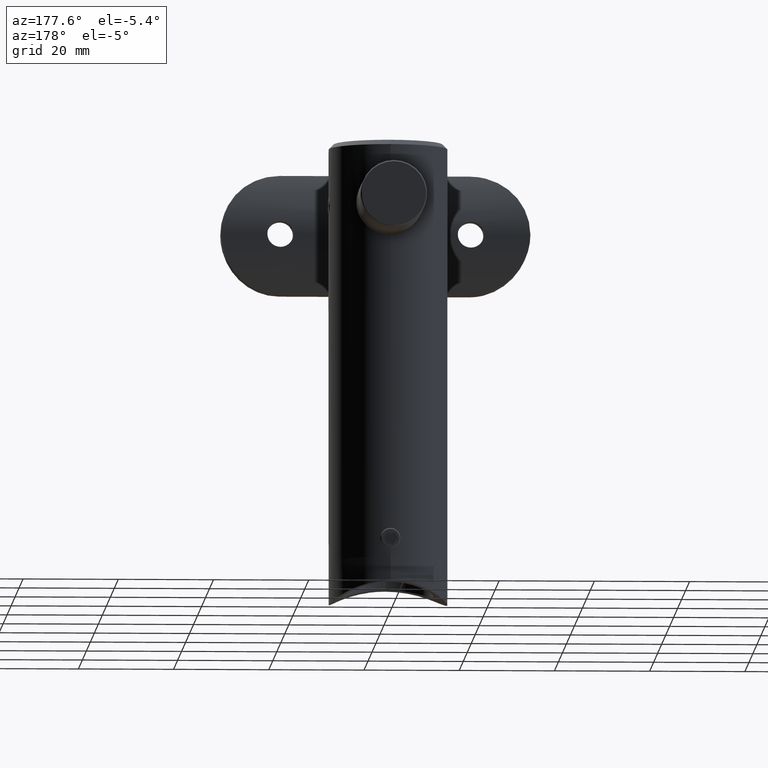
[diagram: clean part render]
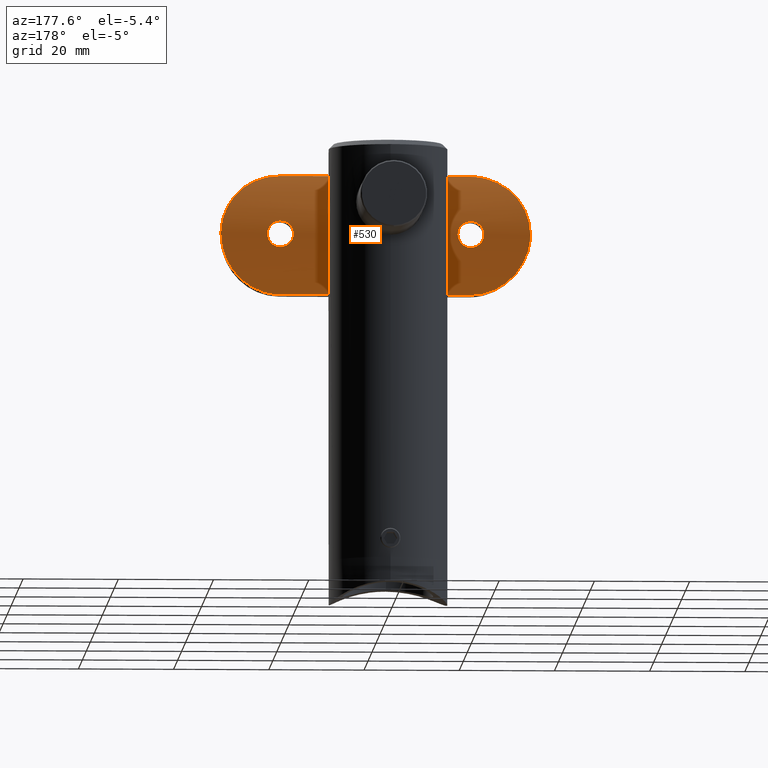
[diagram: same view with one face highlighted and labeled with its STEP entity id]
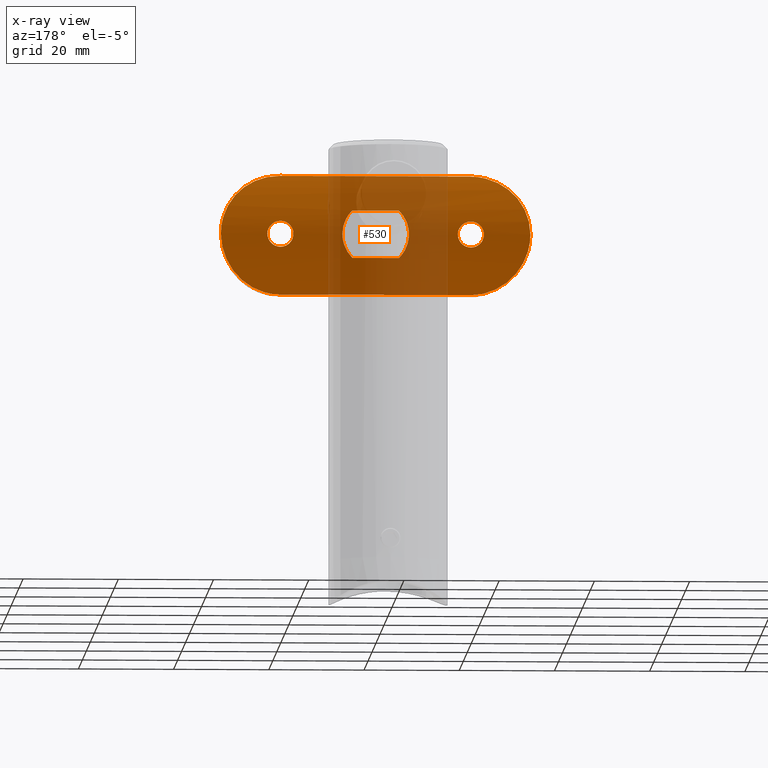
[diagram: x-ray of the same camera — body ghosted, the highlighted face saturated]
A machine part, auxiliary view. The second image highlights one B-rep face of the part: STEP entity #530.
The next image is the same camera in x-ray: the body ghosted, the highlighted face saturated — about 38% of this face is hidden behind the body in this view.
In plain terms, the highlighted cylindrical surface (partial cylindrical patch) has radius 25.2 mm, axis along (1, -0, -0).
Its self-contained STEP definition (entity closure, byte-faithful):
#53 = VERTEX_POINT ( 'NONE', #13456 ) ;
#58 = CARTESIAN_POINT ( 'NONE',  ( 2.877492456091673922, 0.1615283928029649652, -32.17128298990891722 ) ) ;
#369 = CARTESIAN_POINT ( 'NONE',  ( 3.367778438409112056E-16, 1.187979961890814428E-17, -17.25000000000000000 ) ) ;
#429 = CARTESIAN_POINT ( 'NONE',  ( 12.50000000000000355, 3.318729470161013495, 20.00000000000000000 ) ) ;
#440 = CARTESIAN_POINT ( 'NONE',  ( 2.185445985078765752, 0.09474132932688446307, -21.67899418032607528 ) ) ;
#530 = ADVANCED_FACE ( 'NONE', ( #16071, #18037, #19024, #13351 ), #12867, .T. ) ;
#533 = CARTESIAN_POINT ( 'NONE',  ( 4.994997497496878047, 0.5000000000000004441, -4.904079934095693538 ) ) ;
#571 = CARTESIAN_POINT ( 'NONE',  ( 2.386475810722792801, 0.1130527907451534253, -21.37837905385300985 ) ) ;
#662 = CARTESIAN_POINT ( 'NONE',  ( 0.9402805556948555799, 0.01343035068149444136, -6.952064960875580013 ) ) ;
#689 = VECTOR ( 'NONE', #10693, 1000.000000000000000 ) ;
#728 = CARTESIAN_POINT ( 'NONE',  ( 0.4698895265831923296, -7.623296525288704592E-18, -7.000000000000001776 ) ) ;
#775 = CARTESIAN_POINT ( 'NONE',  ( 2.071661256399241591, 0.08497705952024418863, 18.18262409988289008 ) ) ;
#777 = VECTOR ( 'NONE', #12045, 1000.000000000000000 ) ;
#841 = CARTESIAN_POINT ( 'NONE',  ( 1.676804932486638089, 0.05540344988688267192, 17.81296691203435500 ) ) ;
#907 = CARTESIAN_POINT ( 'NONE',  ( 1.816470635807415412, 0.06522320398721243029, 22.07265203258289432 ) ) ;
#1026 = CARTESIAN_POINT ( 'NONE',  ( -4.994997497496878047, 0.5000000000000004441, 32.50000000000000000 ) ) ;
#1032 = CARTESIAN_POINT ( 'NONE',  ( 1.219095633492286668, 0.02895344662255283294, 22.47159784946334327 ) ) ;
#1086 = CARTESIAN_POINT ( 'NONE',  ( -2.501389699445222714, 0.1235345146525173160, -6.541914726237065381 ) ) ;
#1147 = CARTESIAN_POINT ( 'NONE',  ( 0.4606467792952485540, -5.647623811269855736E-05, 7.000203314475389682 ) ) ;
#1153 = CARTESIAN_POINT ( 'NONE',  ( -0.3636032754976207815, -5.176312455442927428E-18, 17.25000000000000355 ) ) ;
#1178 = CARTESIAN_POINT ( 'NONE',  ( -1.681001452974610011, 0.05567932825155111343, -22.18389601222249397 ) ) ;
#1194 = CARTESIAN_POINT ( 'NONE',  ( -12.49999999999999645, 3.318729470161013495, 32.50000000000004974 ) ) ;
#1241 = CARTESIAN_POINT ( 'NONE',  ( -2.188487952104988921, 0.09500982583482231458, -21.67489940466904486 ) ) ;
#1251 = CARTESIAN_POINT ( 'NONE',  ( 11.68647699581961064, 2.872938612537728975, 24.45450101598523318 ) ) ;
#1265 = VERTEX_POINT ( 'NONE', #12763 ) ;
#1278 = CARTESIAN_POINT ( 'NONE',  ( 3.131794892197712343, 0.1945159506885066336, 6.264640589746615085 ) ) ;
#1309 = CARTESIAN_POINT ( 'NONE',  ( -2.731891327557903981, 0.1484927668286139535, -19.63751749119465373 ) ) ;
#1316 = CARTESIAN_POINT ( 'NONE',  ( 0.8408319059978909271, -5.251604272976641764E-17, 32.50000000000000000 ) ) ;
#1349 = CARTESIAN_POINT ( 'NONE',  ( -4.994997497496878047, 0.5000000000000004441, -4.904079934095687321 ) ) ;
#1443 = CARTESIAN_POINT ( 'NONE',  ( -1.667268011024898300, 0.04195479554921916626, -32.41603179174911986 ) ) ;
#1451 = CARTESIAN_POINT ( 'NONE',  ( 9.397641427769128697, 1.816225346274615182, 28.25204418689426689 ) ) ;
#1454 = CARTESIAN_POINT ( 'NONE',  ( -12.41600094213972305, 3.270152093552304962, 21.66693629175976099 ) ) ;
#1656 = CARTESIAN_POINT ( 'NONE',  ( 0.1818445906004798052, -4.764560328305439407E-19, -22.75000000000000000 ) ) ;
#1722 = VERTEX_POINT ( 'NONE', #2859 ) ;
#1754 = CARTESIAN_POINT ( 'NONE',  ( 11.68341459577140107, 2.871341540761539246, -24.46233648995674059 ) ) ;
#1819 = ORIENTED_EDGE ( 'NONE', *, *, #15736, .T. ) ;
#1863 = CARTESIAN_POINT ( 'NONE',  ( -12.49999999999999645, 3.318729470161013495, 20.00000000000000000 ) ) ;
#2006 = CARTESIAN_POINT ( 'NONE',  ( 2.661862787343812098, 0.1409550103587203784, -19.28631872760430355 ) ) ;
#2075 = ORIENTED_EDGE ( 'NONE', *, *, #10162, .F. ) ;
#2238 = B_SPLINE_CURVE_WITH_KNOTS ( 'NONE', 3,
 ( #533, #17877, #7196, #5465, #15103, #10273, #6999, #8563, #2299, #662, #728, #11683 ),
 .UNSPECIFIED., .F., .F.,
 ( 4, 2, 2, 2, 2, 4 ),
 ( -0.005556631019686523489, -0.004167473264764891966, -0.003472894387304076638, -0.002778315509843261311, -0.001389157754921629788, 1.734723475976807094E-18 ),
 .UNSPECIFIED. ) ;
#2299 = CARTESIAN_POINT ( 'NONE',  ( 1.849747642260560765, 0.06385367874897515672, -6.767109309269603301 ) ) ;
#2337 = CARTESIAN_POINT ( 'NONE',  ( 2.661862787343812098, 0.1409550103587203784, 20.71368127239568580 ) ) ;
#2406 = CARTESIAN_POINT ( 'NONE',  ( 2.661818859993607234, 0.1409500894293510831, 19.28586530190980852 ) ) ;
#2493 = CARTESIAN_POINT ( 'NONE',  ( -1.664684350995173645, 0.04192139592814474874, 32.41608617209117682 ) ) ;
#2543 = CARTESIAN_POINT ( 'NONE',  ( 2.186845405397448427, 0.09486715601728981651, 21.67698820101687929 ) ) ;
#2564 = CARTESIAN_POINT ( 'NONE',  ( 9.908890582928830071, 2.028239840774359593, 27.63058222437334166 ) ) ;
#2614 = CARTESIAN_POINT ( 'NONE',  ( 2.073153042044685979, 0.08509194481504152308, 21.81589880862933839 ) ) ;
#2662 = CARTESIAN_POINT ( 'NONE',  ( -1.848043787636057811, 0.06372369354510659667, 6.767591064094362174 ) ) ;
#2665 = CARTESIAN_POINT ( 'NONE',  ( -1.217448732056683580, 0.02888063956006701322, 22.47232603550751762 ) ) ;
#2689 = CARTESIAN_POINT ( 'NONE',  ( -2.070049739579363113, 0.08484369530548910299, -18.18079078823301842 ) ) ;
#2719 = CARTESIAN_POINT ( 'NONE',  ( -2.289067587771870471, 0.1005006583606648518, 6.631371122702273802 ) ) ;
#2747 = CARTESIAN_POINT ( 'NONE',  ( -1.380705439593752137, 0.03740314638222121124, -22.38512476952051955 ) ) ;
#2796 = CARTESIAN_POINT ( 'NONE',  ( -0.8864897003658910313, 0.01505276392571752719, 22.60935115539859197 ) ) ;
#2814 = ORIENTED_EDGE ( 'NONE', *, *, #4365, .F. ) ;
#2825 = CARTESIAN_POINT ( 'NONE',  ( 11.21365936985682232, 2.629676505859719793, 25.58293283478850455 ) ) ;
#2848 = CARTESIAN_POINT ( 'NONE',  ( -4.994997497496878047, 0.5000000000000004441, 4.904079934095687321 ) ) ;
#2852 = CARTESIAN_POINT ( 'NONE',  ( -2.387772925441571825, 0.1131797228511405573, 18.62402471359489908 ) ) ;
#2859 = CARTESIAN_POINT ( 'NONE',  ( 3.367778438409112056E-16, 1.187979961890814428E-17, 22.75000000000000000 ) ) ;
#2878 = CARTESIAN_POINT ( 'NONE',  ( -2.072542795732173371, 0.08505021053594397085, -21.81636770479491361 ) ) ;
#2913 = CARTESIAN_POINT ( 'NONE',  ( -3.141571527728774349, 0.1929047068352865713, -6.272553163709011059 ) ) ;
#3027 = CARTESIAN_POINT ( 'NONE',  ( -12.06660317602190347, 3.076343127531651067, 23.28902056191594028 ) ) ;
#3101 = CARTESIAN_POINT ( 'NONE',  ( 0.000000000000000000, 0.000000000000000000, 32.50000000000000000 ) ) ;
#3195 = CARTESIAN_POINT ( 'NONE',  ( 3.277855041561019256, 0.2108776143917484025, -32.06970119788353202 ) ) ;
#3380 = CARTESIAN_POINT ( 'NONE',  ( -12.49999999999999645, 3.318729470161013495, -20.00000000000000355 ) ) ;
#3444 = CARTESIAN_POINT ( 'NONE',  ( 1.818193974664967127, 0.06535601341085053861, -22.07094331020531541 ) ) ;
#3516 = CARTESIAN_POINT ( 'NONE',  ( 1.219095633492286668, 0.02895344662255283294, -17.52840215053666029 ) ) ;
#3643 = B_SPLINE_CURVE_WITH_KNOTS ( 'NONE', 3,
 ( #7567, #9113, #9249, #7627, #2796, #2665, #16869, #17125, #7426, #15537, #8987, #9047, #20103, #20167, #13813, #12310, #4320, #12175, #4255, #20028, #13756, #10779, #2852, #6043, #4381, #18626, #9182, #15271, #10583, #20225, #1153, #4437 ),
 .UNSPECIFIED., .F., .F.,
 ( 4, 2, 2, 2, 2, 2, 2, 2, 2, 2, 2, 2, 2, 2, 2, 4 ),
 ( 0.008604157104151117716, 0.009141789900862767188, 0.009679422697574418394, 0.01021705549428606787, 0.01075468829099771734, 0.01129232108770936854, 0.01182995388442101801, 0.01236758668113266749, 0.01290521947784431869, 0.01344285227455596816, 0.01398048507126761764, 0.01451811786797926884, 0.01505575066469091831, 0.01559338346140256779, 0.01613101625811421899, 0.01720628185153751447 ),
 .UNSPECIFIED. ) ;
#3656 = CARTESIAN_POINT ( 'NONE',  ( 2.471992188797772716, 0.1214422965093789747, -18.78170196461819685 ) ) ;
#3705 = ORIENTED_EDGE ( 'NONE', *, *, #17704, .T. ) ;
#4001 = CARTESIAN_POINT ( 'NONE',  ( 0.3606231533980620574, 0.001966636658812798057, 17.26785897055959751 ) ) ;
#4102 = CARTESIAN_POINT ( 'NONE',  ( -4.070717388981838880, 0.3277296730789911461, 31.82587335543209761 ) ) ;
#4203 = CARTESIAN_POINT ( 'NONE',  ( 0.1795455977072649978, -1.309195299099928356E-15, 22.75000000000001066 ) ) ;
#4224 = CARTESIAN_POINT ( 'NONE',  ( 12.50000000000000355, 3.318729470161013495, 20.84092147420121677 ) ) ;
#4255 = CARTESIAN_POINT ( 'NONE',  ( -2.732406010615071601, 0.1485492483776507389, 19.64141223355751009 ) ) ;
#4280 = CARTESIAN_POINT ( 'NONE',  ( -2.385862764267737024, 0.1129972152947476410, -18.62071822284677225 ) ) ;
#4281 = EDGE_LOOP ( 'NONE', ( #2075, #10420 ) ) ;
#4306 = VERTEX_POINT ( 'NONE', #3380 ) ;
#4315 = CARTESIAN_POINT ( 'NONE',  ( 2.923378882602776230, 0.1692259389580251516, 6.364519216893696374 ) ) ;
#4320 = CARTESIAN_POINT ( 'NONE',  ( -2.749863044303475501, 0.1504839716144722728, 20.18379582039309739 ) ) ;
#4343 = CARTESIAN_POINT ( 'NONE',  ( -12.17172894015757478, 3.134241449003878799, -22.87552147047213680 ) ) ;
#4365 = EDGE_CURVE ( 'NONE', #15164, #18757, #6685, .T. ) ;
#4379 = CARTESIAN_POINT ( 'NONE',  ( -2.281009278780523175, 0.1024524370745471535, -6.622027795030901665 ) ) ;
#4381 = CARTESIAN_POINT ( 'NONE',  ( -2.072542795732173371, 0.08505021053594397085, 18.18363229520508639 ) ) ;
#4437 = CARTESIAN_POINT ( 'NONE',  ( 0.000000000000000000, 0.000000000000000000, 17.25000000000000000 ) ) ;
#4471 = CARTESIAN_POINT ( 'NONE',  ( 4.083048678825495159, 0.3297619529015493045, 31.82160056614383237 ) ) ;
#4532 = CARTESIAN_POINT ( 'NONE',  ( -10.15187181039420494, 2.133985303426429780, -27.30437927746718074 ) ) ;
#4604 = CARTESIAN_POINT ( 'NONE',  ( 8.562141571826806796, 1.497233673915075114, 29.11593343704043590 ) ) ;
#4606 = CARTESIAN_POINT ( 'NONE',  ( -7.643915563752456066, 1.185045859685579073, 29.89864509263435366 ) ) ;
#4698 = CARTESIAN_POINT ( 'NONE',  ( 10.83018612312571882, 2.440555194631701230, -26.29386951518686644 ) ) ;
#4736 = CARTESIAN_POINT ( 'NONE',  ( -3.291592242805514879, 0.2126942720887865790, -32.06594161125494935 ) ) ;
#4840 = CARTESIAN_POINT ( 'NONE',  ( 5.592058036261040144, 0.6162643484422566376, -31.20930733956446801 ) ) ;
#4906 = CARTESIAN_POINT ( 'NONE',  ( 12.50000000000000888, 3.318729470161013939, -20.84105733039346120 ) ) ;
#4912 = ORIENTED_EDGE ( 'NONE', *, *, #10994, .T. ) ;
#5163 = CARTESIAN_POINT ( 'NONE',  ( 2.385900400082741069, 0.1130020285006530095, -18.62084753042212171 ) ) ;
#5465 = CARTESIAN_POINT ( 'NONE',  ( 3.746260209242295858, 0.2792753570640736926, -5.917626068317372479 ) ) ;
#5512 = CARTESIAN_POINT ( 'NONE',  ( 0.1818445906004798052, -4.764560328305439407E-19, 17.25000000000000355 ) ) ;
#5657 = CARTESIAN_POINT ( 'NONE',  ( -5.592058036261044585, 0.6162643484422571927, 31.20930733956447867 ) ) ;
#5690 = CARTESIAN_POINT ( 'NONE',  ( 4.994997497496878047, 0.5000000000000004441, 4.904079934095681104 ) ) ;
#5829 = CARTESIAN_POINT ( 'NONE',  ( -4.310096744004994207, 0.3683117235646176102, -5.534999873198942488 ) ) ;
#5862 = CARTESIAN_POINT ( 'NONE',  ( -1.217448732056683136, 0.02888063956006700975, -17.52767396449248238 ) ) ;
#5897 = CARTESIAN_POINT ( 'NONE',  ( -1.611077364521717792, 0.05052746572995766433, -6.816003579833039616 ) ) ;
#5928 = CARTESIAN_POINT ( 'NONE',  ( -6.305223603466176385, 0.7914857843385441072, -30.82374023567217947 ) ) ;
#5938 = CARTESIAN_POINT ( 'NONE',  ( 12.17172894015757301, 3.134241449003879243, 22.87552147047213325 ) ) ;
#5977 = VERTEX_POINT ( 'NONE', #1349 ) ;
#6004 = CARTESIAN_POINT ( 'NONE',  ( -2.186191567257209645, 0.09480897740505452032, -18.32210674297805042 ) ) ;
#6043 = CARTESIAN_POINT ( 'NONE',  ( -2.188487952104988921, 0.09500982583481884514, 18.32510059533095870 ) ) ;
#6066 = CARTESIAN_POINT ( 'NONE',  ( -11.68647699581960708, 2.872938612537727199, -24.45450101598523318 ) ) ;
#6075 = CARTESIAN_POINT ( 'NONE',  ( 1.667268011024896079, 0.04195479554921899279, 32.41603179174911276 ) ) ;
#6079 = CARTESIAN_POINT ( 'NONE',  ( -10.15326211524584465, 2.134602035805861053, 27.30241053714793509 ) ) ;
#6088 = B_SPLINE_CURVE_WITH_KNOTS ( 'NONE', 3,
 ( #8716, #15061, #7623, #5897, #8910, #4379, #1086, #2913, #8983, #5829, #10776, #18557 ),
 .UNSPECIFIED., .F., .F.,
 ( 4, 2, 2, 2, 2, 4 ),
 ( 1.734723475976807094E-18, 0.001388628629513971374, 0.002082942944270955651, 0.002777257259027938845, 0.004165885888541906966, 0.005554514518055875087 ),
 .UNSPECIFIED. ) ;
#6106 = CARTESIAN_POINT ( 'NONE',  ( -3.745609676626447282, 0.2791767651045761189, 5.918042161965038517 ) ) ;
#6315 = CARTESIAN_POINT ( 'NONE',  ( 8.266035766619461711, 1.392015620549697186, -29.38537545976075194 ) ) ;
#6483 = CARTESIAN_POINT ( 'NONE',  ( -0.8408319059978930365, 0.000000000000000000, -32.50000000000000711 ) ) ;
#6595 = CARTESIAN_POINT ( 'NONE',  ( 4.994997497496878047, 0.5000000000000004441, 32.50000000000000000 ) ) ;
#6685 = B_SPLINE_CURVE_WITH_KNOTS ( 'NONE', 3,
 ( #8141, #1656, #12822, #14398, #17440, #14471, #19153, #12889, #3444, #14540, #440, #571, #14806, #16343, #14743, #19367, #8478, #11586, #11446, #2006, #14608, #3656, #5163, #8277, #9769, #16127, #9837, #19221, #3516, #17711, #6845, #16202, #6774, #369 ),
 .UNSPECIFIED., .F., .F.,
 ( 4, 2, 2, 2, 2, 2, 2, 2, 2, 2, 2, 2, 2, 2, 2, 2, 4 ),
 ( 0.000000000000000000, 0.0005377598190094450741, 0.001075519638018890148, 0.001613279457028335114, 0.002151039276037779863, 0.002688799095047224395, 0.003226558914056669794, 0.003764318733066114326, 0.004302078552075559725, 0.004839838371085004691, 0.005377598190094449657, 0.005915358009103895490, 0.006453117828113340455, 0.006990877647122785421, 0.007528637466132229519, 0.008066397285141675352, 0.008604157104151117716 ),
 .UNSPECIFIED. ) ;
#6712 = VERTEX_POINT ( 'NONE', #6781 ) ;
#6737 = CARTESIAN_POINT ( 'NONE',  ( 4.994997497496878047, 0.5000000000000004441, -4.904079934095693538 ) ) ;
#6774 = CARTESIAN_POINT ( 'NONE',  ( 0.1795455977072649978, -1.309195299099928356E-15, -17.25000000000000711 ) ) ;
#6781 = CARTESIAN_POINT ( 'NONE',  ( 0.000000000000000000, 0.000000000000000000, -7.000000000000000000 ) ) ;
#6845 = CARTESIAN_POINT ( 'NONE',  ( 0.7146027208720071577, 0.009516633005673827764, -17.33838830395485076 ) ) ;
#6999 = CARTESIAN_POINT ( 'NONE',  ( 2.931071408694909675, 0.1701189516846315086, -6.361014005149244532 ) ) ;
#7172 = CARTESIAN_POINT ( 'NONE',  ( 2.609876908287981578, 0.1354165326377078371, 20.88517682305715084 ) ) ;
#7175 = LINE ( 'NONE', #1026, #777 ) ;
#7196 = CARTESIAN_POINT ( 'NONE',  ( 4.316102207502560795, 0.3693900422898226954, -5.530128126320168924 ) ) ;
#7197 = CARTESIAN_POINT ( 'NONE',  ( -2.877492456091671258, 0.1615283928029647431, 32.17128298990891722 ) ) ;
#7208 = ORIENTED_EDGE ( 'NONE', *, *, #12911, .T. ) ;
#7242 = CARTESIAN_POINT ( 'NONE',  ( 0.8870457649144880552, 0.01506562019405351636, 17.39075877949505156 ) ) ;
#7266 = CARTESIAN_POINT ( 'NONE',  ( -7.316861939614358157, 1.083062932609342166, 30.14291416132807910 ) ) ;
#7426 = CARTESIAN_POINT ( 'NONE',  ( -1.816389252517511821, 0.06522504145087958116, 22.07252458703131381 ) ) ;
#7451 = CARTESIAN_POINT ( 'NONE',  ( -0.8864897003658910313, 0.01505276392571752719, -17.39064884460141869 ) ) ;
#7525 = CARTESIAN_POINT ( 'NONE',  ( -0.1795031878923732671, -1.317162702760038330E-15, -17.25000000000000355 ) ) ;
#7545 = B_SPLINE_CURVE_WITH_KNOTS ( 'NONE', 3,
 ( #17084, #7525, #15435, #18587, #7451, #5862, #20190, #18650, #20128, #2689, #6004, #4280, #16895, #17157, #10743, #1309, #20058, #15296, #10804, #12334, #20317, #17020, #7591, #1241, #2878, #12266, #1178, #2747, #13908, #7719, #9206, #7652 ),
 .UNSPECIFIED., .F., .F.,
 ( 4, 2, 2, 2, 2, 2, 2, 2, 2, 2, 2, 2, 2, 2, 2, 4 ),
 ( 0.008604157104151117716, 0.009141789900862767188, 0.009679422697574418394, 0.01021705549428606787, 0.01075468829099771734, 0.01129232108770936854, 0.01182995388442101801, 0.01236758668113266749, 0.01290521947784431869, 0.01344285227455596816, 0.01398048507126761764, 0.01451811786797926884, 0.01505575066469091831, 0.01559338346140256779, 0.01613101625811421899, 0.01720628185153751447 ),
 .UNSPECIFIED. ) ;
#7567 = CARTESIAN_POINT ( 'NONE',  ( 3.367778438409112056E-16, 1.187979961890814428E-17, 22.75000000000000000 ) ) ;
#7591 = CARTESIAN_POINT ( 'NONE',  ( -2.387772925441571825, 0.1131797228511440268, -21.37597528640510447 ) ) ;
#7597 = CARTESIAN_POINT ( 'NONE',  ( 10.83002449294436254, 2.440458914311941729, 26.29431497601598267 ) ) ;
#7623 = CARTESIAN_POINT ( 'NONE',  ( -0.9310396230433164444, 0.01311211510573928075, -6.953205413290148407 ) ) ;
#7627 = CARTESIAN_POINT ( 'NONE',  ( -0.7129347024110690434, 0.009461439531602326702, 22.66213446081863125 ) ) ;
#7652 = CARTESIAN_POINT ( 'NONE',  ( 0.000000000000000000, 0.000000000000000000, -22.75000000000000000 ) ) ;
#7664 = CARTESIAN_POINT ( 'NONE',  ( -11.21245238722107018, 2.629098992545241487, 25.58474759764793660 ) ) ;
#7690 = CARTESIAN_POINT ( 'NONE',  ( 4.669051333004633264, 0.4340850090705480890, 5.236068869397914938 ) ) ;
#7716 = CARTESIAN_POINT ( 'NONE',  ( 3.367778438409112056E-16, 1.187979961890814428E-17, -17.25000000000000000 ) ) ;
#7719 = CARTESIAN_POINT ( 'NONE',  ( -0.7248454631982099716, 0.008252449000111697353, -22.67681650122943537 ) ) ;
#7728 = CARTESIAN_POINT ( 'NONE',  ( 3.291592242805514879, 0.2126942720887864124, 32.06594161125493514 ) ) ;
#7772 = EDGE_CURVE ( 'NONE', #1722, #1265, #3643, .T. ) ;
#7823 = CARTESIAN_POINT ( 'NONE',  ( 11.21245238722107018, 2.629098992545241931, -25.58474759764793660 ) ) ;
#7863 = CARTESIAN_POINT ( 'NONE',  ( 8.265288067340183176, 1.391754679466066458, 29.38603808824741037 ) ) ;
#7960 = CARTESIAN_POINT ( 'NONE',  ( 12.16969663537521029, 3.133117325917486262, -22.88442763853376150 ) ) ;
#8099 = CARTESIAN_POINT ( 'NONE',  ( 0.000000000000000000, 0.000000000000000000, -32.50000000000000000 ) ) ;
#8141 = CARTESIAN_POINT ( 'NONE',  ( 0.000000000000000000, 0.000000000000000000, -22.75000000000000000 ) ) ;
#8277 = CARTESIAN_POINT ( 'NONE',  ( 2.186845405397448427, 0.09486715601728981651, -18.32301179898312782 ) ) ;
#8359 = EDGE_CURVE ( 'NONE', #12168, #4306, #8556, .T. ) ;
#8478 = CARTESIAN_POINT ( 'NONE',  ( 2.749934349876254736, 0.1504917997237275318, -20.18051630387617124 ) ) ;
#8556 = LINE ( 'NONE', #1194, #689 ) ;
#8563 = CARTESIAN_POINT ( 'NONE',  ( 2.290527553827960805, 0.1006377947985062915, -6.630852029072078047 ) ) ;
#8665 = CARTESIAN_POINT ( 'NONE',  ( 1.818193974664967127, 0.06535601341085053861, 17.92905668979468103 ) ) ;
#8716 = CARTESIAN_POINT ( 'NONE',  ( 0.000000000000000000, 0.000000000000000000, -7.000000000000000000 ) ) ;
#8799 = CARTESIAN_POINT ( 'NONE',  ( 2.732461809628500049, 0.1485546420409056823, 19.64094503296044181 ) ) ;
#8819 = CARTESIAN_POINT ( 'NONE',  ( 10.15187181039420672, 2.133985303426429780, 27.30437927746718074 ) ) ;
#8857 = CARTESIAN_POINT ( 'NONE',  ( 0.000000000000000000, 0.000000000000000000, 17.25000000000000000 ) ) ;
#8910 = CARTESIAN_POINT ( 'NONE',  ( -1.835749376210721762, 0.06596090496137294035, -6.759014697112781356 ) ) ;
#8913 = DIRECTION ( 'NONE',  ( -1.000000000000000000, 0.000000000000000000, 0.000000000000000000 ) ) ;
#8983 = CARTESIAN_POINT ( 'NONE',  ( -3.545792875619932172, 0.2477049255195007404, -6.053140542082076081 ) ) ;
#8987 = CARTESIAN_POINT ( 'NONE',  ( -2.186191567257209201, 0.09480897740505701832, 21.67789325702194958 ) ) ;
#9012 = CARTESIAN_POINT ( 'NONE',  ( -8.265288067340179623, 1.391754679466061351, -29.38603808824742103 ) ) ;
#9024 = CARTESIAN_POINT ( 'NONE',  ( -11.68341459577139929, 2.871341540761538358, 24.46233648995672638 ) ) ;
#9047 = CARTESIAN_POINT ( 'NONE',  ( -2.385862764267737912, 0.1129972152947501668, 21.37928177715322420 ) ) ;
#9071 = CARTESIAN_POINT ( 'NONE',  ( -4.083048678825496047, 0.3297619529015496931, -31.82160056614383947 ) ) ;
#9109 = CARTESIAN_POINT ( 'NONE',  ( -0.4673612864847879744, 0.003256157991245582552, 6.988305028286099230 ) ) ;
#9113 = CARTESIAN_POINT ( 'NONE',  ( -0.1795031878923732671, -1.317162702760038330E-15, 22.75000000000000000 ) ) ;
#9173 = CARTESIAN_POINT ( 'NONE',  ( 0.000000000000000000, 0.000000000000000000, 32.50000000000000000 ) ) ;
#9176 = CARTESIAN_POINT ( 'NONE',  ( 4.994997497496878047, 0.5000000000000004441, 4.904079934095681104 ) ) ;
#9182 = CARTESIAN_POINT ( 'NONE',  ( -1.681001452974610233, 0.05567932825155114118, 17.81610398777750959 ) ) ;
#9206 = CARTESIAN_POINT ( 'NONE',  ( -0.3636032754976207815, -5.176312455442927428E-18, -22.75000000000000000 ) ) ;
#9249 = CARTESIAN_POINT ( 'NONE',  ( -0.3580001740282881539, 0.001917836237160809674, 22.73259430812108306 ) ) ;
#9276 = CARTESIAN_POINT ( 'NONE',  ( -9.397641427769126921, 1.816225346274614516, -28.25204418689426333 ) ) ;
#9491 = CARTESIAN_POINT ( 'NONE',  ( 0.000000000000000000, 0.000000000000000000, -32.50000000000000000 ) ) ;
#9526 = CARTESIAN_POINT ( 'NONE',  ( 7.316861939614359933, 1.083062932609342388, -30.14291416132809687 ) ) ;
#9595 = ORIENTED_EDGE ( 'NONE', *, *, #17684, .T. ) ;
#9660 = CARTESIAN_POINT ( 'NONE',  ( 4.460191993434857949, 0.3948698794312856530, -31.68435314470301023 ) ) ;
#9726 = EDGE_LOOP ( 'NONE', ( #2814, #19783 ) ) ;
#9733 = VECTOR ( 'NONE', #18217, 1000.000000000000000 ) ;
#9769 = CARTESIAN_POINT ( 'NONE',  ( 2.073153042044685979, 0.08509194481504152308, -18.18410119137066872 ) ) ;
#9837 = CARTESIAN_POINT ( 'NONE',  ( 1.677668902466895817, 0.05546439489903178671, -17.81367847826243889 ) ) ;
#9914 = ORIENTED_EDGE ( 'NONE', *, *, #8359, .T. ) ;
#9933 = ORIENTED_EDGE ( 'NONE', *, *, #15471, .T. ) ;
#9973 = EDGE_LOOP ( 'NONE', ( #20340, #4912, #20137, #1819, #15130, #9914 ) ) ;
#10162 = EDGE_CURVE ( 'NONE', #1265, #1722, #10514, .T. ) ;
#10273 = CARTESIAN_POINT ( 'NONE',  ( 3.142232499645792654, 0.1958283380120629802, -6.259404109617910272 ) ) ;
#10276 = CARTESIAN_POINT ( 'NONE',  ( 0.000000000000000000, 0.000000000000000000, 32.50000000000000000 ) ) ;
#10301 = DIRECTION ( 'NONE',  ( 0.000000000000000000, 0.000000000000000000, -1.000000000000000000 ) ) ;
#10420 = ORIENTED_EDGE ( 'NONE', *, *, #7772, .F. ) ;
#10463 = CARTESIAN_POINT ( 'NONE',  ( 1.677668902466895817, 0.05546439489903178671, 22.18632152173756111 ) ) ;
#10514 = B_SPLINE_CURVE_WITH_KNOTS ( 'NONE', 3,
 ( #8857, #5512, #4001, #16615, #7242, #19780, #15081, #841, #8665, #775, #16544, #11851, #19643, #19711, #2406, #8799, #13430, #15012, #11792, #2337, #7172, #11992, #18178, #2543, #2614, #907, #10463, #13565, #1032, #11923, #16748, #13638, #4203, #16815 ),
 .UNSPECIFIED., .F., .F.,
 ( 4, 2, 2, 2, 2, 2, 2, 2, 2, 2, 2, 2, 2, 2, 2, 2, 4 ),
 ( 0.000000000000000000, 0.0005377598190094450741, 0.001075519638018890148, 0.001613279457028335114, 0.002151039276037779863, 0.002688799095047224395, 0.003226558914056669794, 0.003764318733066114326, 0.004302078552075559725, 0.004839838371085004691, 0.005377598190094449657, 0.005915358009103895490, 0.006453117828113340455, 0.006990877647122785421, 0.007528637466132229519, 0.008066397285141675352, 0.008604157104151117716 ),
 .UNSPECIFIED. ) ;
#10578 = CARTESIAN_POINT ( 'NONE',  ( -1.165555591662773116, 0.02593808576752156328, 6.906183376199995116 ) ) ;
#10583 = CARTESIAN_POINT ( 'NONE',  ( -1.220874907014684041, 0.02904747797317014726, 17.52936721807646592 ) ) ;
#10684 = CARTESIAN_POINT ( 'NONE',  ( 11.82730682096132568, 2.947497412072435097, 24.06646263368968519 ) ) ;
#10693 = DIRECTION ( 'NONE',  ( 0.000000000000000000, 0.000000000000000000, -1.000000000000000000 ) ) ;
#10713 = CARTESIAN_POINT ( 'NONE',  ( -3.548809991974042788, 0.2502861401745519188, 6.038192309906697197 ) ) ;
#10743 = CARTESIAN_POINT ( 'NONE',  ( -2.661730875569997323, 0.1409410865998054208, -19.28598841689137799 ) ) ;
#10755 = CARTESIAN_POINT ( 'NONE',  ( -9.129107160068514304, 1.709771713892832778, 28.54809784016516616 ) ) ;
#10776 = CARTESIAN_POINT ( 'NONE',  ( -4.669349089494447824, 0.4341452233588673493, -5.235765592750420083 ) ) ;
#10779 = CARTESIAN_POINT ( 'NONE',  ( -2.472126326106448335, 0.1214555880474237487, 18.78197714892290193 ) ) ;
#10802 = VERTEX_POINT ( 'NONE', #13335 ) ;
#10804 = CARTESIAN_POINT ( 'NONE',  ( -2.732406010615071601, 0.1485492483776507389, -20.35858776644249346 ) ) ;
#10855 = EDGE_CURVE ( 'NONE', #18863, #16578, #15659, .T. ) ;
#10894 = VERTEX_POINT ( 'NONE', #9173 ) ;
#10956 = CARTESIAN_POINT ( 'NONE',  ( 4.468211620779538151, 0.3963447934949464457, 31.68121519372564521 ) ) ;
#10994 = EDGE_CURVE ( 'NONE', #10802, #16578, #13409, .T. ) ;
#11050 = CARTESIAN_POINT ( 'NONE',  ( 9.910013130227612876, 2.028718244006083804, -27.62913782769574667 ) ) ;
#11122 = CARTESIAN_POINT ( 'NONE',  ( 0.8406273536774238053, -0.000000000000000000, -32.49999999999999289 ) ) ;
#11197 = CARTESIAN_POINT ( 'NONE',  ( 11.82318603278413960, 2.945306615177193610, -24.07833795785315445 ) ) ;
#11431 = ORIENTED_EDGE ( 'NONE', *, *, #16035, .T. ) ;
#11446 = CARTESIAN_POINT ( 'NONE',  ( 2.732147407359613034, 0.1485206058410668273, -19.63913298616770220 ) ) ;
#11586 = CARTESIAN_POINT ( 'NONE',  ( 2.750065284371435048, 0.1505061740554802241, -19.82148950650028851 ) ) ;
#11683 = CARTESIAN_POINT ( 'NONE',  ( 0.000000000000000000, 0.000000000000000000, -7.000000000000000000 ) ) ;
#11792 = CARTESIAN_POINT ( 'NONE',  ( 2.732147407359613034, 0.1485206058410668273, 20.36086701383229425 ) ) ;
#11851 = CARTESIAN_POINT ( 'NONE',  ( 2.386475810722792801, 0.1130527907451534253, 18.62162094614699370 ) ) ;
#11908 = EDGE_CURVE ( 'NONE', #18757, #15164, #7545, .T. ) ;
#11915 = EDGE_CURVE ( 'NONE', #4306, #10802, #13736, .T. ) ;
#11923 = CARTESIAN_POINT ( 'NONE',  ( 0.8860473344149225605, 0.01503029826974694276, 22.60958046709581026 ) ) ;
#11992 = CARTESIAN_POINT ( 'NONE',  ( 2.471992188797772716, 0.1214422965093789747, 21.21829803538181380 ) ) ;
#12045 = DIRECTION ( 'NONE',  ( -0.000000000000000000, -0.000000000000000000, 1.000000000000000000 ) ) ;
#12129 = CARTESIAN_POINT ( 'NONE',  ( -11.21365936985681877, 2.629676505859717572, -25.58293283478850810 ) ) ;
#12168 = VERTEX_POINT ( 'NONE', #1863 ) ;
#12175 = CARTESIAN_POINT ( 'NONE',  ( -2.750135411493285886, 0.1505138727913203633, 19.82032561543001492 ) ) ;
#12206 = CARTESIAN_POINT ( 'NONE',  ( -7.642973678624863432, 1.184744735341877853, -29.89937630247455047 ) ) ;
#12220 = CARTESIAN_POINT ( 'NONE',  ( -10.83018612312571882, 2.440555194631701674, 26.29386951518686999 ) ) ;
#12266 = CARTESIAN_POINT ( 'NONE',  ( -1.819241778286837530, 0.06543225118884783698, -22.07002044224181958 ) ) ;
#12277 = CARTESIAN_POINT ( 'NONE',  ( -8.562866471435935267, 1.497495063479012734, 29.11525600394244861 ) ) ;
#12307 = CARTESIAN_POINT ( 'NONE',  ( 3.539860134001162617, 0.2490128047230068808, 6.043446963216088541 ) ) ;
#12310 = CARTESIAN_POINT ( 'NONE',  ( -2.731891327557903981, 0.1484927668286139535, 20.36248250880534272 ) ) ;
#12334 = CARTESIAN_POINT ( 'NONE',  ( -2.662740999674293896, 0.1410487502677224281, -20.71023810214682825 ) ) ;
#12372 = CARTESIAN_POINT ( 'NONE',  ( 0.9221644624557880920, 0.01267861320223575769, 6.954787537755473537 ) ) ;
#12402 = CARTESIAN_POINT ( 'NONE',  ( -12.07039748615804342, 3.078414103210619146, -23.27518083691608908 ) ) ;
#12559 = VERTEX_POINT ( 'NONE', #5690 ) ;
#12568 = CARTESIAN_POINT ( 'NONE',  ( 12.41600094213972305, 3.270152093552303629, -21.66693629175976099 ) ) ;
#12611 = CARTESIAN_POINT ( 'NONE',  ( 7.315607594578458439, 1.082687997029814886, 30.14380031678955518 ) ) ;
#12637 = CARTESIAN_POINT ( 'NONE',  ( 1.664684350995175421, 0.04192139592814493609, -32.41608617209116971 ) ) ;
#12763 = CARTESIAN_POINT ( 'NONE',  ( 0.000000000000000000, 0.000000000000000000, 17.25000000000000000 ) ) ;
#12822 = CARTESIAN_POINT ( 'NONE',  ( 0.3606231533980620574, 0.001966636658812798057, -22.73214102944040249 ) ) ;
#12867 = CYLINDRICAL_SURFACE ( 'NONE', #18142, 25.19999999999999929 ) ;
#12889 = CARTESIAN_POINT ( 'NONE',  ( 1.676804932486638089, 0.05540344988688267192, -22.18703308796564144 ) ) ;
#12911 = EDGE_CURVE ( 'NONE', #12559, #18967, #16117, .T. ) ;
#12934 = EDGE_LOOP ( 'NONE', ( #11431, #3705, #7208, #9933, #9595 ) ) ;
#13154 = VECTOR ( 'NONE', #18972, 1000.000000000000000 ) ;
#13320 = B_SPLINE_CURVE_WITH_KNOTS ( 'NONE', 3,
 ( #13658, #4224, #15442, #5938, #18530, #10684, #1251, #2825, #7597, #8819, #2564, #1451, #17163, #4604, #7863, #17292, #12611, #13916, #20398, #10956, #4471, #7728, #14197, #6075, #1316, #3101 ),
 .UNSPECIFIED., .F., .F.,
 ( 4, 2, 2, 2, 2, 2, 2, 2, 2, 2, 2, 2, 4 ),
 ( 0.000000000000000000, 0.002482949619020690529, 0.003724424428531040131, 0.004965899238041389732, 0.007448848857062097609, 0.008690323666572448078, 0.009931798476082796812, 0.01117327328559314728, 0.01241474809510349428, 0.01489769771412418828, 0.01613917252363453528, 0.01738064733314488228, 0.01986359695216557281 ),
 .UNSPECIFIED. ) ;
#13335 = CARTESIAN_POINT ( 'NONE',  ( 0.000000000000000000, 0.000000000000000000, -32.50000000000000000 ) ) ;
#13351 = FACE_BOUND ( 'NONE', #4281, .T. ) ;
#13409 = B_SPLINE_CURVE_WITH_KNOTS ( 'NONE', 3,
 ( #8099, #11122, #12637, #58, #3195, #15876, #9660, #4840, #17469, #9526, #17248, #6315, #14220, #19034, #18815, #11050, #17320, #4698, #7823, #1754, #11197, #20422, #7960, #12568, #4906, #15799 ),
 .UNSPECIFIED., .F., .F.,
 ( 4, 2, 2, 2, 2, 2, 2, 2, 2, 2, 2, 2, 4 ),
 ( 0.000000000000000000, 0.002483427128890330991, 0.003725140693335499738, 0.004966854257780666318, 0.007450281386671002946, 0.008691994951116169960, 0.009933708515561337840, 0.01117542208000650572, 0.01241713564445167187, 0.01490056277334199895, 0.01614227633778715643, 0.01738398990223231563, 0.01986741703112264446 ),
 .UNSPECIFIED. ) ;
#13430 = CARTESIAN_POINT ( 'NONE',  ( 2.749934349876254736, 0.1504917997237275318, 19.81948369612382876 ) ) ;
#13456 = CARTESIAN_POINT ( 'NONE',  ( -4.994997497496878047, 0.5000000000000004441, 4.904079934095687321 ) ) ;
#13565 = CARTESIAN_POINT ( 'NONE',  ( 1.379931598055810005, 0.03736833065384769642, 22.38544828646618612 ) ) ;
#13638 = CARTESIAN_POINT ( 'NONE',  ( 0.3619265619250440214, 0.001981854215824124538, 22.73200348333876875 ) ) ;
#13658 = CARTESIAN_POINT ( 'NONE',  ( 12.50000000000000355, 3.318729470161013495, 20.00000000000000000 ) ) ;
#13718 = CARTESIAN_POINT ( 'NONE',  ( -9.128318860952347791, 1.709465851586688290, -28.54893592778295286 ) ) ;
#13736 = B_SPLINE_CURVE_WITH_KNOTS ( 'NONE', 3,
 ( #13776, #18709, #15497, #4343, #12402, #13843, #6066, #12129, #13970, #4532, #15564, #9276, #13718, #18456, #9012, #12206, #15369, #5928, #16955, #18521, #9071, #4736, #15698, #1443, #6483, #9491 ),
 .UNSPECIFIED., .F., .F.,
 ( 4, 2, 2, 2, 2, 2, 2, 2, 2, 2, 2, 2, 4 ),
 ( 0.000000000000000000, 0.002482949619020707443, 0.003724424428531055310, 0.004965899238041403610, 0.007448848857062097609, 0.008690323666572449812, 0.009931798476082802016, 0.01117327328559315248, 0.01241474809510350295, 0.01489769771412419522, 0.01613917252363454222, 0.01738064733314488575, 0.01986359695216557628 ),
 .UNSPECIFIED. ) ;
#13754 = CARTESIAN_POINT ( 'NONE',  ( 1.840663757758763674, 0.06310474882528753493, 6.769890244458069972 ) ) ;
#13756 = CARTESIAN_POINT ( 'NONE',  ( -2.609961094115734959, 0.1354253680277159866, 19.11507552572169999 ) ) ;
#13776 = CARTESIAN_POINT ( 'NONE',  ( -12.49999999999999645, 3.318729470161013495, -20.00000000000000355 ) ) ;
#13813 = CARTESIAN_POINT ( 'NONE',  ( -2.661730875569997323, 0.1409410865998053930, 20.71401158310862911 ) ) ;
#13843 = CARTESIAN_POINT ( 'NONE',  ( -11.82730682096132746, 2.947497412072435541, -24.06646263368969585 ) ) ;
#13854 = CARTESIAN_POINT ( 'NONE',  ( -12.16969663537520674, 3.133117325917486706, 22.88442763853375794 ) ) ;
#13880 = CARTESIAN_POINT ( 'NONE',  ( 3.739686144282476477, 0.2782750895421263748, 5.921855256084517904 ) ) ;
#13908 = CARTESIAN_POINT ( 'NONE',  ( -1.220874907014684041, 0.02904747797317014379, -22.47063278192352698 ) ) ;
#13916 = CARTESIAN_POINT ( 'NONE',  ( 6.305223603466182603, 0.7914857843385423308, 30.82374023567219368 ) ) ;
#13920 = CARTESIAN_POINT ( 'NONE',  ( -9.910013130227612876, 2.028718244006080695, 27.62913782769574311 ) ) ;
#13970 = CARTESIAN_POINT ( 'NONE',  ( -10.83002449294436431, 2.440458914311942173, -26.29431497601598977 ) ) ;
#13991 = B_SPLINE_CURVE_WITH_KNOTS ( 'NONE', 3,
 ( #2848, #17057, #16929, #6106, #10713, #16864, #18424, #2719, #2662, #10578, #20023, #9109, #17121, #1147, #12372, #13754, #18623, #4315, #1278, #12307, #13880, #15474, #7690, #9176 ),
 .UNSPECIFIED., .F., .F.,
 ( 4, 2, 2, 2, 2, 2, 2, 2, 2, 2, 2, 4 ),
 ( 0.000000000000000000, 0.001390029914704787048, 0.002085044872057180681, 0.002780059829409574097, 0.004170089744114359627, 0.004865104701466752175, 0.005560119658819145591, 0.006950149573523930688, 0.008340179488228717519, 0.009035194445581110068, 0.009730209402933504351, 0.01112023931763829118 ),
 .UNSPECIFIED. ) ;
#14197 = CARTESIAN_POINT ( 'NONE',  ( 2.886391478844329672, 0.1625181075792131447, 32.16925023365995884 ) ) ;
#14220 = CARTESIAN_POINT ( 'NONE',  ( 8.562866471435933491, 1.497495063479012956, -29.11525600394245572 ) ) ;
#14398 = CARTESIAN_POINT ( 'NONE',  ( 0.7123072138261845598, 0.009455089816863529797, -22.66219122090235771 ) ) ;
#14471 = CARTESIAN_POINT ( 'NONE',  ( 1.220040459320808957, 0.02899940046473774291, -22.47113156538764045 ) ) ;
#14540 = CARTESIAN_POINT ( 'NONE',  ( 2.071661256399241591, 0.08497705952024418863, -21.81737590011711703 ) ) ;
#14608 = CARTESIAN_POINT ( 'NONE',  ( 2.609876908287981578, 0.1354165326377078371, -19.11482317694285626 ) ) ;
#14743 = CARTESIAN_POINT ( 'NONE',  ( 2.661818859993607234, 0.1409500894293510831, -20.71413469809018792 ) ) ;
#14806 = CARTESIAN_POINT ( 'NONE',  ( 2.471811025445441512, 0.1214254394478187504, -21.21849364676016592 ) ) ;
#15012 = CARTESIAN_POINT ( 'NONE',  ( 2.750065284371435048, 0.1505061740554802241, 20.17851049349971504 ) ) ;
#15032 = CARTESIAN_POINT ( 'NONE',  ( -0.8406273536774243604, 0.000000000000000000, 32.49999999999999289 ) ) ;
#15061 = CARTESIAN_POINT ( 'NONE',  ( -0.4697105472797776793, 2.258754526011471294E-18, -7.000000000000000888 ) ) ;
#15081 = CARTESIAN_POINT ( 'NONE',  ( 1.377952979709324399, 0.03725658765956027518, 17.61336343462641452 ) ) ;
#15103 = CARTESIAN_POINT ( 'NONE',  ( 3.549571146164063329, 0.2503953886577515164, -6.037740435597692468 ) ) ;
#15106 = CARTESIAN_POINT ( 'NONE',  ( -4.460191993434859725, 0.3948698794312859861, 31.68435314470299957 ) ) ;
#15130 = ORIENTED_EDGE ( 'NONE', *, *, #18183, .T. ) ;
#15164 = VERTEX_POINT ( 'NONE', #19888 ) ;
#15271 = CARTESIAN_POINT ( 'NONE',  ( -1.380705439593752137, 0.03740314638222120430, 17.61487523047949111 ) ) ;
#15296 = CARTESIAN_POINT ( 'NONE',  ( -2.750135411493285886, 0.1505138727913203633, -20.17967438456998508 ) ) ;
#15369 = CARTESIAN_POINT ( 'NONE',  ( -7.315607594578454886, 1.082687997029816884, -30.14380031678956584 ) ) ;
#15435 = CARTESIAN_POINT ( 'NONE',  ( -0.3580001740282881539, 0.001917836237160809674, -17.26740569187890983 ) ) ;
#15442 = CARTESIAN_POINT ( 'NONE',  ( 12.41604513394916331, 3.270190002513736260, 21.66440971848879826 ) ) ;
#15445 = CARTESIAN_POINT ( 'NONE',  ( -8.266035766619465264, 1.392015620549698296, 29.38537545976074483 ) ) ;
#15454 = B_SPLINE_CURVE_WITH_KNOTS ( 'NONE', 3,
 ( #10276, #15032, #2493, #7197, #18197, #4102, #15106, #5657, #16706, #7266, #4606, #15445, #12277, #10755, #15575, #13920, #6079, #12220, #7664, #9024, #17167, #3027, #13854, #1454, #15506, #17096 ),
 .UNSPECIFIED., .F., .F.,
 ( 4, 2, 2, 2, 2, 2, 2, 2, 2, 2, 2, 2, 4 ),
 ( 0.000000000000000000, 0.002483427128890320582, 0.003725140693335483692, 0.004966854257780646369, 0.007450281386670975191, 0.008691994951116138735, 0.009933708515561303146, 0.01117542208000646756, 0.01241713564445163023, 0.01490056277334196599, 0.01614227633778713908, 0.01738398990223230869, 0.01986741703112264446 ),
 .UNSPECIFIED. ) ;
#15471 = EDGE_CURVE ( 'NONE', #18967, #6712, #2238, .T. ) ;
#15474 = CARTESIAN_POINT ( 'NONE',  ( 4.314476204835205664, 0.3690556973962460519, 5.531707114890253685 ) ) ;
#15497 = CARTESIAN_POINT ( 'NONE',  ( -12.41604513394916331, 3.270190002513733596, -21.66440971848879826 ) ) ;
#15506 = CARTESIAN_POINT ( 'NONE',  ( -12.50000000000000178, 3.318729470161014383, 20.84105733039345765 ) ) ;
#15537 = CARTESIAN_POINT ( 'NONE',  ( -2.070049739579363557, 0.08484369530548850624, 21.81920921176698158 ) ) ;
#15564 = CARTESIAN_POINT ( 'NONE',  ( -9.908890582928831847, 2.028239840774358704, -27.63058222437334166 ) ) ;
#15575 = CARTESIAN_POINT ( 'NONE',  ( -9.398516132625637454, 1.816575251650669465, 28.25106046154296280 ) ) ;
#15659 = LINE ( 'NONE', #20018, #9733 ) ;
#15698 = CARTESIAN_POINT ( 'NONE',  ( -2.886391478844331449, 0.1625181075792133389, -32.16925023365996594 ) ) ;
#15736 = EDGE_CURVE ( 'NONE', #18863, #10894, #13320, .T. ) ;
#15799 = CARTESIAN_POINT ( 'NONE',  ( 12.50000000000000355, 3.318729470161013495, -20.00000000000000355 ) ) ;
#15876 = CARTESIAN_POINT ( 'NONE',  ( 4.070717388981838880, 0.3277296730789912571, -31.82587335543210472 ) ) ;
#16035 = EDGE_CURVE ( 'NONE', #5977, #53, #7175, .T. ) ;
#16071 = FACE_BOUND ( 'NONE', #12934, .T. ) ;
#16117 = LINE ( 'NONE', #6595, #13154 ) ;
#16127 = CARTESIAN_POINT ( 'NONE',  ( 1.816470635807415412, 0.06522320398721243029, -17.92734796741711278 ) ) ;
#16202 = CARTESIAN_POINT ( 'NONE',  ( 0.3619265619250440214, 0.001981854215824124538, -17.26799651666124191 ) ) ;
#16343 = CARTESIAN_POINT ( 'NONE',  ( 2.608974361319663426, 0.1353235704774092829, -20.88759748460954313 ) ) ;
#16544 = CARTESIAN_POINT ( 'NONE',  ( 2.185445985078765752, 0.09474132932688446307, 18.32100581967393182 ) ) ;
#16578 = VERTEX_POINT ( 'NONE', #16855 ) ;
#16615 = CARTESIAN_POINT ( 'NONE',  ( 0.7123072138261845598, 0.009455089816863529797, 17.33780877909763873 ) ) ;
#16706 = CARTESIAN_POINT ( 'NONE',  ( -6.305381315458568281, 0.7915044484486738474, 30.82371801999915917 ) ) ;
#16748 = CARTESIAN_POINT ( 'NONE',  ( 0.7146027208720071577, 0.009516633005673827764, 22.66161169604514924 ) ) ;
#16815 = CARTESIAN_POINT ( 'NONE',  ( 3.367778438409112056E-16, 1.187979961890814428E-17, 22.75000000000000000 ) ) ;
#16855 = CARTESIAN_POINT ( 'NONE',  ( 12.50000000000000355, 3.318729470161013495, -20.00000000000000355 ) ) ;
#16864 = CARTESIAN_POINT ( 'NONE',  ( -3.141235740066087967, 0.1957021280014279163, 6.259908685906100168 ) ) ;
#16869 = CARTESIAN_POINT ( 'NONE',  ( -1.377384947430291051, 0.03722026577971185302, 22.38704495760669033 ) ) ;
#16895 = CARTESIAN_POINT ( 'NONE',  ( -2.470413666786928530, 0.1212862312369624579, -18.77851669315223404 ) ) ;
#16929 = CARTESIAN_POINT ( 'NONE',  ( -4.315763821508111775, 0.3693279822086432684, 5.530410668177875522 ) ) ;
#16955 = CARTESIAN_POINT ( 'NONE',  ( -5.594010815491762045, 0.6168360506386466602, -31.20802645236641837 ) ) ;
#17020 = CARTESIAN_POINT ( 'NONE',  ( -2.472126326106448335, 0.1214555880474237487, -21.21802285107709807 ) ) ;
#17057 = CARTESIAN_POINT ( 'NONE',  ( -4.669080344610502031, 0.4340908759895247271, 5.236039319941006021 ) ) ;
#17084 = CARTESIAN_POINT ( 'NONE',  ( 3.367778438409112056E-16, 1.187979961890814428E-17, -17.25000000000000000 ) ) ;
#17096 = CARTESIAN_POINT ( 'NONE',  ( -12.49999999999999645, 3.318729470161013495, 20.00000000000000000 ) ) ;
#17121 = CARTESIAN_POINT ( 'NONE',  ( -0.2349423089766321249, 2.852032032254879111E-05, 6.999897326837698053 ) ) ;
#17125 = CARTESIAN_POINT ( 'NONE',  ( -1.677983819124378329, 0.05547686773416762168, 22.18621664658374115 ) ) ;
#17157 = CARTESIAN_POINT ( 'NONE',  ( -2.608673552859927636, 0.1352907402618860333, -19.11130013583631282 ) ) ;
#17163 = CARTESIAN_POINT ( 'NONE',  ( 9.128318860952353120, 1.709465851586690732, 28.54893592778294575 ) ) ;
#17167 = CARTESIAN_POINT ( 'NONE',  ( -11.82318603278414315, 2.945306615177194054, 24.07833795785315445 ) ) ;
#17248 = CARTESIAN_POINT ( 'NONE',  ( 7.643915563752456954, 1.185045859685578851, -29.89864509263436787 ) ) ;
#17292 = CARTESIAN_POINT ( 'NONE',  ( 7.642973678624867873, 1.184744735341883182, 29.89937630247453981 ) ) ;
#17320 = CARTESIAN_POINT ( 'NONE',  ( 10.15326211524584643, 2.134602035805861941, -27.30241053714794930 ) ) ;
#17440 = CARTESIAN_POINT ( 'NONE',  ( 0.8870457649144880552, 0.01506562019405351636, -22.60924122050495200 ) ) ;
#17469 = CARTESIAN_POINT ( 'NONE',  ( 6.305381315458570057, 0.7915044484486738474, -30.82371801999915917 ) ) ;
#17684 = EDGE_CURVE ( 'NONE', #6712, #5977, #6088, .T. ) ;
#17704 = EDGE_CURVE ( 'NONE', #53, #12559, #13991, .T. ) ;
#17711 = CARTESIAN_POINT ( 'NONE',  ( 0.8860473344149225605, 0.01503029826974694276, -17.39041953290419684 ) ) ;
#17877 = CARTESIAN_POINT ( 'NONE',  ( 4.669236543162464947, 0.4341224634946321825, -5.235880225597802529 ) ) ;
#18037 = FACE_OUTER_BOUND ( 'NONE', #9973, .T. ) ;
#18142 = AXIS2_PLACEMENT_3D ( 'NONE', #19964, #10301, #8913 ) ;
#18178 = CARTESIAN_POINT ( 'NONE',  ( 2.385900400082741069, 0.1130020285006530095, 21.37915246957787829 ) ) ;
#18183 = EDGE_CURVE ( 'NONE', #10894, #12168, #15454, .T. ) ;
#18197 = CARTESIAN_POINT ( 'NONE',  ( -3.277855041561018368, 0.2108776143917484303, 32.06970119788351781 ) ) ;
#18217 = DIRECTION ( 'NONE',  ( 0.000000000000000000, 0.000000000000000000, -1.000000000000000000 ) ) ;
#18424 = CARTESIAN_POINT ( 'NONE',  ( -2.929958534734449671, 0.1699876669962065157, 6.361530580908661747 ) ) ;
#18456 = CARTESIAN_POINT ( 'NONE',  ( -8.562141571826799691, 1.497233673915073338, -29.11593343704044301 ) ) ;
#18521 = CARTESIAN_POINT ( 'NONE',  ( -4.468211620779534599, 0.3963447934949435036, -31.68121519372563810 ) ) ;
#18530 = CARTESIAN_POINT ( 'NONE',  ( 12.07039748615804342, 3.078414103210619146, 23.27518083691608552 ) ) ;
#18557 = CARTESIAN_POINT ( 'NONE',  ( -4.994997497496878047, 0.5000000000000004441, -4.904079934095687321 ) ) ;
#18587 = CARTESIAN_POINT ( 'NONE',  ( -0.7129347024110690434, 0.009461439531602326702, -17.33786553918137230 ) ) ;
#18623 = CARTESIAN_POINT ( 'NONE',  ( 2.285116335268842391, 0.1001709153427563503, 6.632589173777879488 ) ) ;
#18626 = CARTESIAN_POINT ( 'NONE',  ( -1.819241778286838196, 0.06543225118884780922, 17.92997955775818397 ) ) ;
#18650 = CARTESIAN_POINT ( 'NONE',  ( -1.677983819124378995, 0.05547686773416776740, -17.81378335341628016 ) ) ;
#18709 = CARTESIAN_POINT ( 'NONE',  ( -12.49999999999999822, 3.318729470161013939, -20.84092147420121677 ) ) ;
#18757 = VERTEX_POINT ( 'NONE', #7716 ) ;
#18815 = CARTESIAN_POINT ( 'NONE',  ( 9.398516132625637454, 1.816575251650671907, -28.25106046154296635 ) ) ;
#18863 = VERTEX_POINT ( 'NONE', #429 ) ;
#18967 = VERTEX_POINT ( 'NONE', #6737 ) ;
#18972 = DIRECTION ( 'NONE',  ( 0.000000000000000000, 0.000000000000000000, -1.000000000000000000 ) ) ;
#19024 = FACE_BOUND ( 'NONE', #9726, .T. ) ;
#19034 = CARTESIAN_POINT ( 'NONE',  ( 9.129107160068516080, 1.709771713892833001, -28.54809784016517327 ) ) ;
#19153 = CARTESIAN_POINT ( 'NONE',  ( 1.377952979709324399, 0.03725658765956027518, -22.38663656537358548 ) ) ;
#19221 = CARTESIAN_POINT ( 'NONE',  ( 1.379931598055810005, 0.03736833065384769642, -17.61455171353381743 ) ) ;
#19367 = CARTESIAN_POINT ( 'NONE',  ( 2.732461809628500049, 0.1485546420409056823, -20.35905496703956175 ) ) ;
#19643 = CARTESIAN_POINT ( 'NONE',  ( 2.471811025445441512, 0.1214254394478187504, 18.78150635323983053 ) ) ;
#19711 = CARTESIAN_POINT ( 'NONE',  ( 2.608974361319663426, 0.1353235704774092829, 19.11240251539046042 ) ) ;
#19780 = CARTESIAN_POINT ( 'NONE',  ( 1.220040459320808957, 0.02899940046473774291, 17.52886843461236310 ) ) ;
#19783 = ORIENTED_EDGE ( 'NONE', *, *, #11908, .F. ) ;
#19888 = CARTESIAN_POINT ( 'NONE',  ( 0.000000000000000000, 0.000000000000000000, -22.75000000000000000 ) ) ;
#19964 = CARTESIAN_POINT ( 'NONE',  ( 0.000000000000000000, 25.19999999999999929, 32.50000000000000000 ) ) ;
#20018 = CARTESIAN_POINT ( 'NONE',  ( 12.49999999999999645, 3.318729470161013495, 32.50000000000000000 ) ) ;
#20023 = CARTESIAN_POINT ( 'NONE',  ( -0.9333434786751418910, 0.01621162805870885251, 6.941448241634314620 ) ) ;
#20028 = CARTESIAN_POINT ( 'NONE',  ( -2.662740999674293896, 0.1410487502677224281, 19.28976189785317175 ) ) ;
#20058 = CARTESIAN_POINT ( 'NONE',  ( -2.749863044303475501, 0.1504839716144722728, -19.81620417960690261 ) ) ;
#20103 = CARTESIAN_POINT ( 'NONE',  ( -2.470413666786928530, 0.1212862312369622497, 21.22148330684776951 ) ) ;
#20128 = CARTESIAN_POINT ( 'NONE',  ( -1.816389252517512265, 0.06522504145088024730, -17.92747541296869329 ) ) ;
#20137 = ORIENTED_EDGE ( 'NONE', *, *, #10855, .F. ) ;
#20167 = CARTESIAN_POINT ( 'NONE',  ( -2.608673552859927636, 0.1352907402618857835, 20.88869986416369073 ) ) ;
#20190 = CARTESIAN_POINT ( 'NONE',  ( -1.377384947430292605, 0.03722026577971198485, -17.61295504239332388 ) ) ;
#20225 = CARTESIAN_POINT ( 'NONE',  ( -0.7248454631982099716, 0.008252449000111697353, 17.32318349877056818 ) ) ;
#20317 = CARTESIAN_POINT ( 'NONE',  ( -2.609961094115734959, 0.1354253680277159866, -20.88492447427830356 ) ) ;
#20340 = ORIENTED_EDGE ( 'NONE', *, *, #11915, .T. ) ;
#20398 = CARTESIAN_POINT ( 'NONE',  ( 5.594010815491769151, 0.6168360506386498798, 31.20802645236641837 ) ) ;
#20422 = CARTESIAN_POINT ( 'NONE',  ( 12.06660317602190169, 3.076343127531650179, -23.28902056191593672 ) ) ;